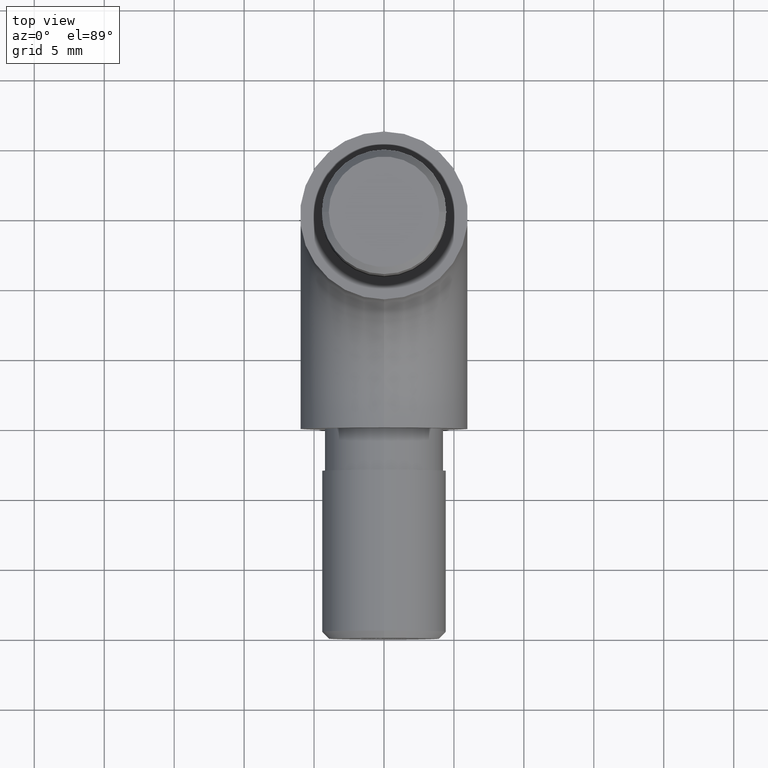
[diagram: clean part render]
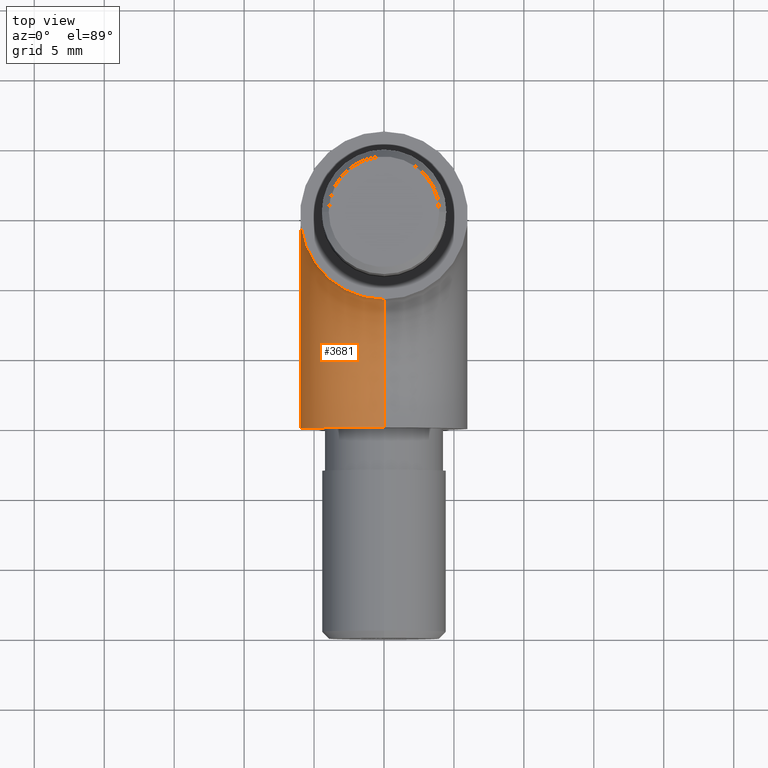
[diagram: same view with one face highlighted and labeled with its STEP entity id]
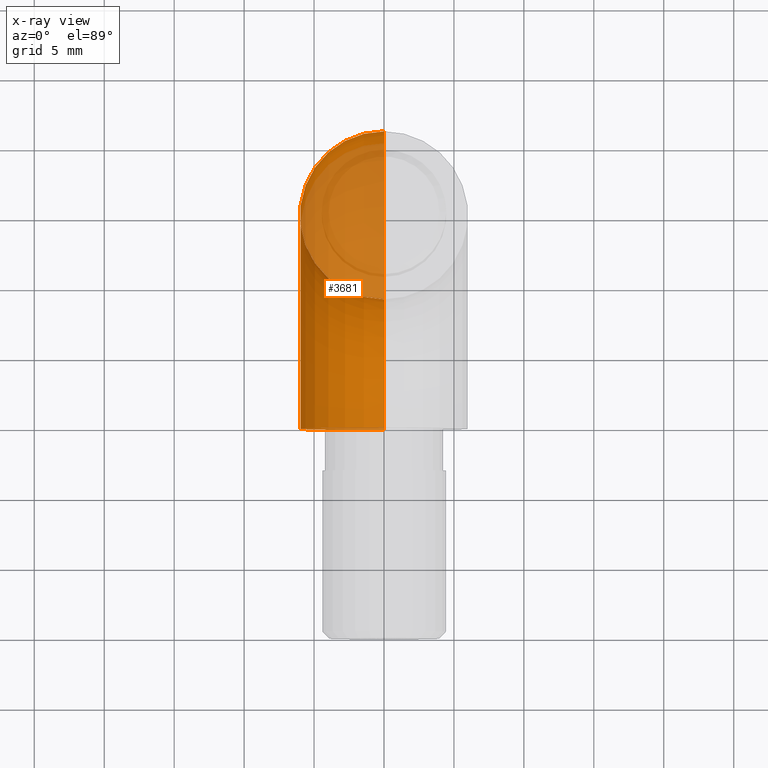
[diagram: x-ray of the same camera — body ghosted, the highlighted face saturated]
A machine part, top view. The second image highlights one B-rep face of the part: STEP entity #3681.
The next image is the same camera in x-ray: the body ghosted, the highlighted face saturated — about 43% of this face is hidden behind the body in this view.
In plain terms, the highlighted toroidal blend (fillet) surface has major radius 15 mm and minor (blend) radius 6 mm.
Its self-contained STEP definition (entity closure, byte-faithful):
#333 = CARTESIAN_POINT ( 'NONE',  ( 0.000000000000000000, 0.000000000000000000, 15.00000000000000000 ) ) ;
#693 = ORIENTED_EDGE ( 'NONE', *, *, #9868, .F. ) ;
#1023 = ORIENTED_EDGE ( 'NONE', *, *, #11516, .T. ) ;
#1287 = AXIS2_PLACEMENT_3D ( 'NONE', #11703, #4604, #12910 ) ;
#2125 = EDGE_LOOP ( 'NONE', ( #7692, #1023, #7297, #693 ) ) ;
#3204 = CARTESIAN_POINT ( 'NONE',  ( 0.000000000000000000, 0.000000000000000000, 5.999999999999999112 ) ) ;
#3358 = CIRCLE ( 'NONE', #8984, 5.999999999999999112 ) ;
#3595 = CIRCLE ( 'NONE', #1287, 9.000000000000001776 ) ;
#3681 = ADVANCED_FACE ( 'NONE', ( #15088 ), #8675, .T. ) ;
#3729 = CARTESIAN_POINT ( 'NONE',  ( 0.000000000000000000, 20.99999999999999645, 15.00000000000000178 ) ) ;
#4163 = CARTESIAN_POINT ( 'NONE',  ( 0.000000000000000000, 0.000000000000000000, 15.00000000000000000 ) ) ;
#4604 = DIRECTION ( 'NONE',  ( 1.000000000000000000, 0.000000000000000000, 0.000000000000000000 ) ) ;
#5118 = DIRECTION ( 'NONE',  ( 0.000000000000000000, 0.000000000000000000, -1.000000000000000000 ) ) ;
#5310 = CARTESIAN_POINT ( 'NONE',  ( 0.000000000000000000, 0.000000000000000000, -5.999999999999998224 ) ) ;
#5424 = DIRECTION ( 'NONE',  ( 0.000000000000000000, 0.000000000000000000, -1.000000000000000000 ) ) ;
#5433 = CIRCLE ( 'NONE', #15158, 20.99999999999999645 ) ;
#5617 = DIRECTION ( 'NONE',  ( 0.000000000000000000, -1.000000000000000000, 0.000000000000000000 ) ) ;
#6085 = VERTEX_POINT ( 'NONE', #3729 ) ;
#6483 = EDGE_CURVE ( 'NONE', #12219, #6085, #5433, .T. ) ;
#6783 = CIRCLE ( 'NONE', #7838, 5.999999999999998224 ) ;
#7297 = ORIENTED_EDGE ( 'NONE', *, *, #9188, .T. ) ;
#7692 = ORIENTED_EDGE ( 'NONE', *, *, #6483, .F. ) ;
#7838 = AXIS2_PLACEMENT_3D ( 'NONE', #13865, #10352, #5617 ) ;
#8591 = VERTEX_POINT ( 'NONE', #15004 ) ;
#8675 = TOROIDAL_SURFACE ( 'NONE', #10619, 15.00000000000000000, 5.999999999999999112 ) ;
#8984 = AXIS2_PLACEMENT_3D ( 'NONE', #11677, #11787, #14122 ) ;
#9188 = EDGE_CURVE ( 'NONE', #11002, #8591, #3595, .T. ) ;
#9868 = EDGE_CURVE ( 'NONE', #6085, #8591, #6783, .T. ) ;
#10026 = DIRECTION ( 'NONE',  ( 1.000000000000000000, 0.000000000000000000, 0.000000000000000000 ) ) ;
#10352 = DIRECTION ( 'NONE',  ( 0.000000000000000000, -1.156482317317871725E-16, 1.000000000000000000 ) ) ;
#10619 = AXIS2_PLACEMENT_3D ( 'NONE', #333, #12164, #5118 ) ;
#11002 = VERTEX_POINT ( 'NONE', #3204 ) ;
#11516 = EDGE_CURVE ( 'NONE', #12219, #11002, #3358, .T. ) ;
#11677 = CARTESIAN_POINT ( 'NONE',  ( 0.000000000000000000, 0.000000000000000000, 0.000000000000000000 ) ) ;
#11703 = CARTESIAN_POINT ( 'NONE',  ( -7.347880794884118750E-16, 0.000000000000000000, 15.00000000000000000 ) ) ;
#11787 = DIRECTION ( 'NONE',  ( 0.000000000000000000, 1.000000000000000000, 0.000000000000000000 ) ) ;
#12164 = DIRECTION ( 'NONE',  ( 1.000000000000000000, 0.000000000000000000, 0.000000000000000000 ) ) ;
#12219 = VERTEX_POINT ( 'NONE', #5310 ) ;
#12910 = DIRECTION ( 'NONE',  ( 0.000000000000000000, 0.000000000000000000, -1.000000000000000000 ) ) ;
#13865 = CARTESIAN_POINT ( 'NONE',  ( 0.000000000000000000, 15.00000000000000000, 15.00000000000000178 ) ) ;
#14122 = DIRECTION ( 'NONE',  ( 0.000000000000000000, 0.000000000000000000, 1.000000000000000000 ) ) ;
#15004 = CARTESIAN_POINT ( 'NONE',  ( 0.000000000000000000, 9.000000000000001776, 15.00000000000000178 ) ) ;
#15088 = FACE_OUTER_BOUND ( 'NONE', #2125, .T. ) ;
#15158 = AXIS2_PLACEMENT_3D ( 'NONE', #4163, #10026, #5424 ) ;